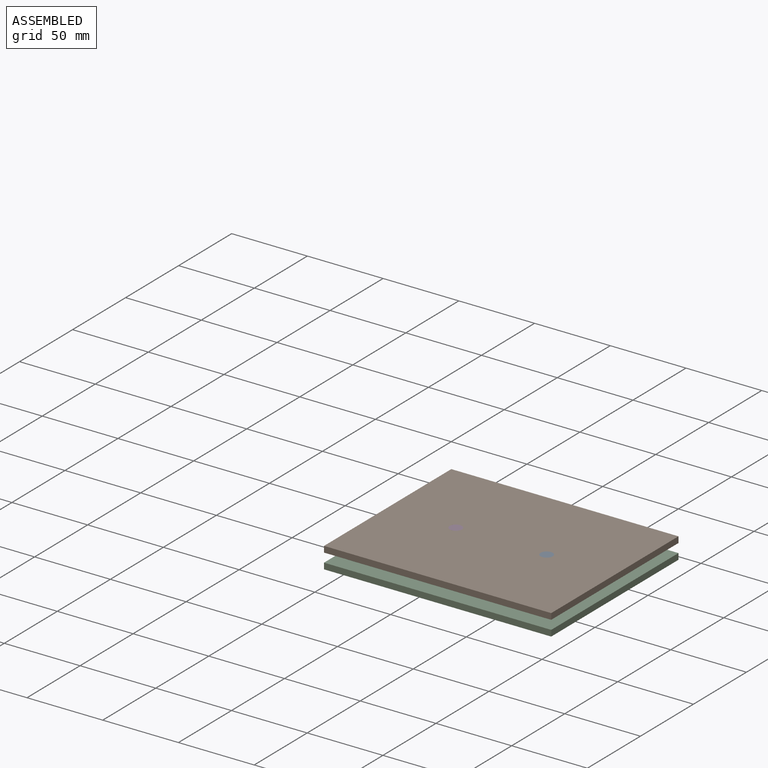
[diagram: assembled view]
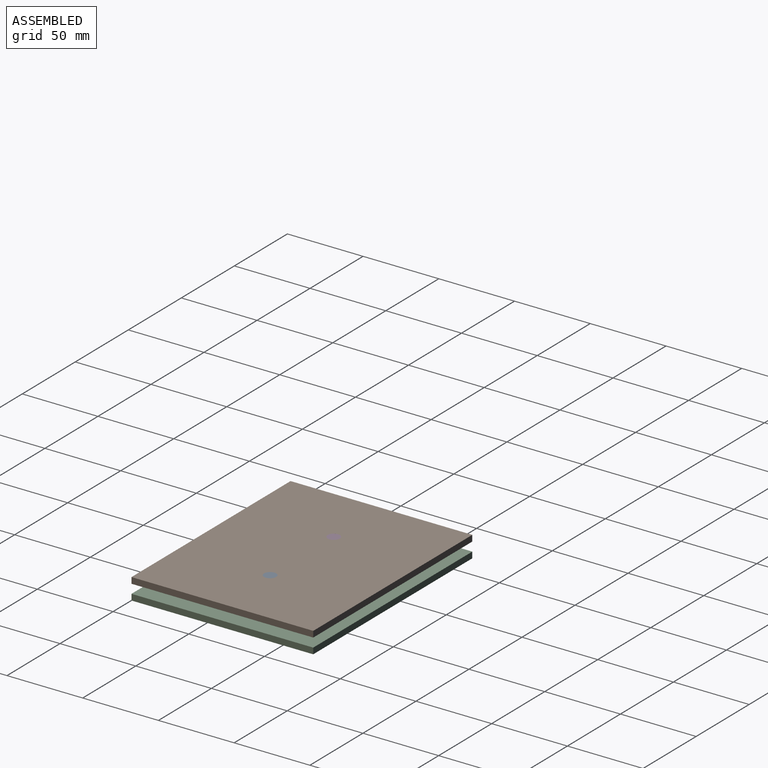
[diagram: assembled view, second angle]
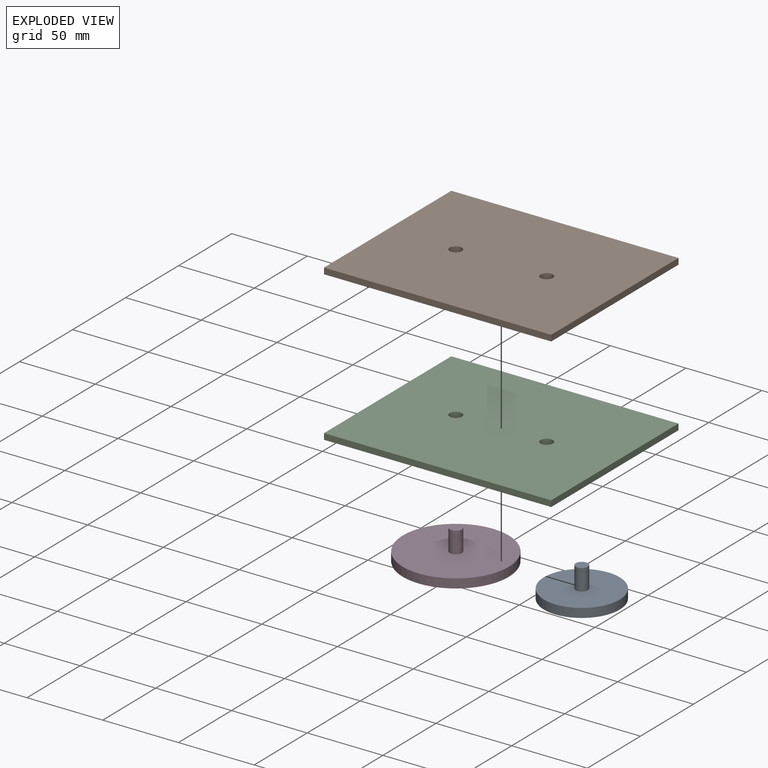
[diagram: exploded view]
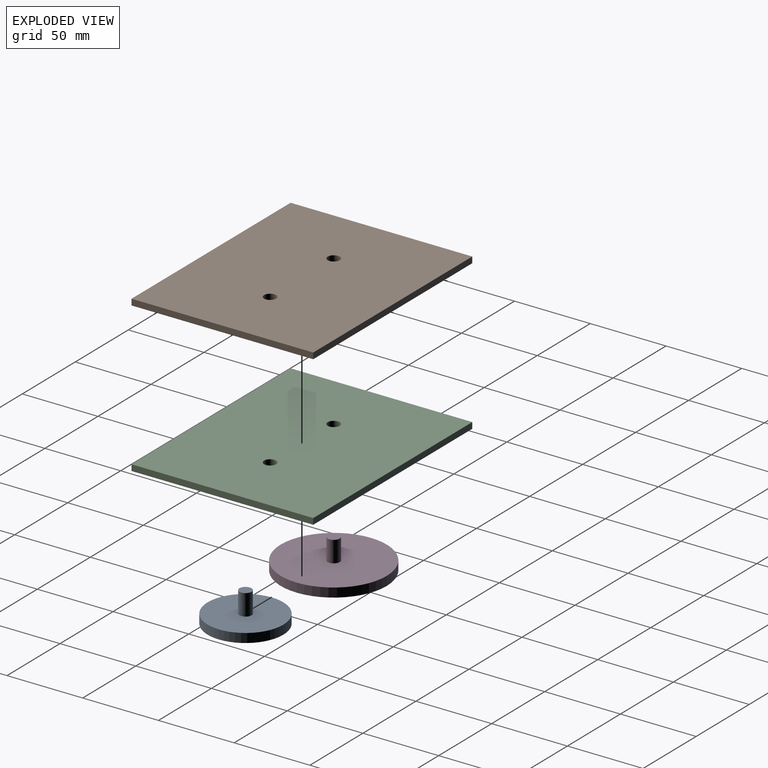
[diagram: exploded view, second angle]
ASSEMBLY  parts=4 mates=2
PART A: 16 faces, bbox 50.8x50.8x20.8 mm
  f0: plane 50.8x50.8mm, normal (0,0,-1), area 1678.4mm2, adj f3,f5,f6,f7,f8,f9,f10,f11
  f1: cylinder r=4mm len=14mm, axis (0,0,-1), area 351.9mm2, adj f2,f4
  f2: plane 8x8mm, normal (0,0,1), area 50.3mm2, adj f1
  f3: cylinder r=25mm len=50mm, axis (0,0,1), area 942.5mm2, adj f0,f4
  f4: plane 50x50mm, normal (0,0,1), area 1913.2mm2, adj f1,f3
  f5: plane 7.02x1mm, normal (0,-0.71,-0.71), area 8.5mm2, adj f0,f6,f14,f15
  f6: plane 33.2x1mm, normal (-0.71,0,-0.71), area 45.5mm2, adj f0,f5,f7,f15
  f7: plane 5.77x1mm, normal (0,0.71,-0.71), area 7.2mm2, adj f0,f6,f8,f15
  f8: plane 11.04x8.67mm, normal (0.44,0.55,-0.71), area 18.4mm2, adj f0,f7,f9,f15
  f9: plane 4.22x3.54mm, normal (0.55,-0.44,-0.71), area 6.2mm2, adj f0,f8,f10,f15
  f10: plane 3.85x3.81mm, normal (-0.44,-0.55,-0.71), area 6.2mm2, adj f0,f9,f11,f15
  f11: bspline ~5.02x4.96mm, area 6.4mm2, adj f0,f10,f12,f15
  f12: plane 5.98x1.2mm, normal (0.71,0.02,-0.71), area 6.7mm2, adj f0,f11,f13,f15
  f13: plane 3.17x1.07mm, normal (0.71,0.02,-0.71), area 4.4mm2, adj f0,f12,f14,f15
  f14: plane 19.21x1mm, normal (0.71,0,-0.71), area 26.5mm2, adj f0,f5,f13,f15
  f15: plane 31.2x14.06mm, normal (0,0,-1), area 188.8mm2, adj f5,f6,f7,f8,f9,f10,f11,f12
PART B: 8 faces, bbox 150x120x4 mm
  f0: plane 150x120mm, normal (0,0,1), area 17899.5mm2, adj f2,f3,f4,f5,f6,f7
  f1: plane 150x120mm, normal (0,0,-1), area 17899.5mm2, adj f2,f3,f4,f5,f6,f7
  f2: plane 150x4mm, normal (0,1,0), area 600mm2, adj f0,f1,f3,f5
  f3: plane 120x4mm, normal (-1,0,0), area 480mm2, adj f0,f1,f2,f4
  f4: plane 150x4mm, normal (0,-1,0), area 600mm2, adj f0,f1,f3,f5
  f5: plane 120x4mm, normal (1,0,0), area 480mm2, adj f0,f1,f2,f4
  f6: cylinder r=4mm len=8mm, axis (0,0,1), area 100.5mm2, adj f0,f1
  f7: cylinder r=4mm len=8mm, axis (0,0,1), area 100.5mm2, adj f0,f1
PART C: 8 faces, bbox 150x120x4 mm
  f0: plane 150x120mm, normal (0,0,1), area 17899.5mm2, adj f2,f3,f4,f5,f6,f7
  f1: plane 150x120mm, normal (0,0,-1), area 17899.5mm2, adj f2,f3,f4,f5,f6,f7
  f2: plane 150x4mm, normal (0,1,0), area 600mm2, adj f0,f1,f3,f5
  f3: plane 120x4mm, normal (-1,0,0), area 480mm2, adj f0,f1,f2,f4
  f4: plane 150x4mm, normal (0,-1,0), area 600mm2, adj f0,f1,f3,f5
  f5: plane 120x4mm, normal (1,0,0), area 480mm2, adj f0,f1,f2,f4
  f6: cylinder r=4mm len=8mm, axis (0,0,1), area 100.5mm2, adj f0,f1
  f7: cylinder r=4mm len=8mm, axis (0,0,1), area 100.5mm2, adj f0,f1
PART D: 30 faces, bbox 70.5x70.5x20.5 mm
  f0: plane 70.44x70.44mm, normal (0,0,-1), area 2795.6mm2, adj f3,f5,f6,f7,f8,f9,f10,f11
  f1: cylinder r=4mm len=14mm, axis (0,0,-1), area 351.9mm2, adj f2,f4
  f2: plane 8x8mm, normal (0,0,1), area 50.3mm2, adj f1
  f3: cylinder r=35mm len=70mm, axis (0,0,1), area 1319.5mm2, adj f0,f4
  f4: plane 70x70mm, normal (0,0,1), area 3798.2mm2, adj f1,f3
  f5: plane 37.17x1mm, normal (0,-0.71,-0.71), area 51.1mm2, adj f0,f6,f28,f29
  f6: plane 9.46x1mm, normal (-0.71,0,-0.71), area 12mm2, adj f0,f5,f7,f29
  f7: plane 24.17x1mm, normal (0,0.71,-0.71), area 32.8mm2, adj f0,f6,f8,f29
  f8: plane 1.93x1mm, normal (-0.71,0,-0.71), area 1.7mm2, adj f0,f7,f9,f29
  f9: plane 7.84x7.17mm, normal (-0.48,-0.52,-0.71), area 13.6mm2, adj f0,f8,f10,f29
  f10: bspline ~10.27x10.22mm, area 19.1mm2, adj f0,f9,f11,f29
  f11: bspline ~7.05x4.94mm, area 10.7mm2, adj f0,f10,f12,f29
  f12: bspline ~6.89x2.41mm, area 9.7mm2, adj f0,f11,f13,f29
  f13: bspline ~7.49x3.12mm, area 10.8mm2, adj f0,f12,f14,f29
  f14: bspline ~6.36x5.63mm, area 10.8mm2, adj f0,f13,f15,f29
  f15: bspline ~8.8x2.9mm, area 12.5mm2, adj f0,f14,f16,f29
  f16: bspline ~6.84x1.91mm, area 9.6mm2, adj f0,f15,f17,f29
  f17: bspline ~5.87x3.01mm, area 8.4mm2, adj f0,f16,f18,f29
  f18: bspline ~7.07x5.64mm, area 10.5mm2, adj f0,f17,f19,f29
  f19: plane 7.25x6.26mm, normal (0.54,-0.46,-0.71), area 12mm2, adj f0,f18,f20,f29
  f20: bspline ~6.84x5.12mm, area 9.8mm2, adj f0,f19,f21,f29
  f21: bspline ~6.43x2.42mm, area 9.1mm2, adj f0,f20,f22,f29
  f22: bspline ~5.38x2.57mm, area 7.7mm2, adj f0,f21,f23,f29
  f23: bspline ~5.66x2.97mm, area 8mm2, adj f0,f22,f24,f29
  f24: bspline ~4.52x1.8mm, area 6.3mm2, adj f0,f23,f25,f29
  f25: bspline ~4.96x3.55mm, area 7.4mm2, adj f0,f24,f26,f29
  f26: bspline ~9.38x8.82mm, area 16.3mm2, adj f0,f25,f27,f29
  f27: plane 14.06x13.9mm, normal (0.5,0.5,-0.71), area 26.5mm2, adj f0,f26,f28,f29
  f28: plane 7.82x1mm, normal (0.71,0,-0.71), area 10.1mm2, adj f0,f5,f27,f29
  f29: plane 52.39x35.63mm, normal (0,0,-1), area 822mm2, adj f5,f6,f7,f8,f9,f10,f11,f12
PLACE A rot(axis=(0,0,-1),68deg) t=(64.59,-6.76,-20.34)mm
PLACE B t=(23.35,21.06,-20.34)mm fixed
PLACE C t=(23.35,21.06,-20.34)mm fixed
PLACE D rot(axis=(0,0,-1),67.1deg) t=(-18.31,48.7,-20.34)mm
MATE revolute C.f7 <-> D.f1  axis (0,0,-1) through (-6.65,21.06,-20.34)mm
MATE revolute A.f1 <-> B.f6  axis (0,0,1) through (53.35,21.06,-6.34)mm
